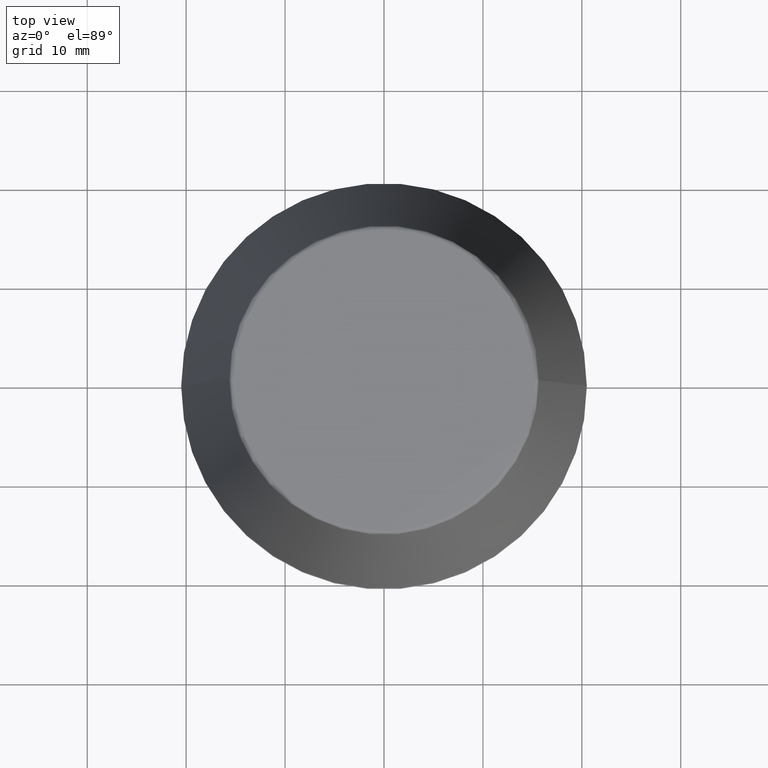
[diagram: clean part render]
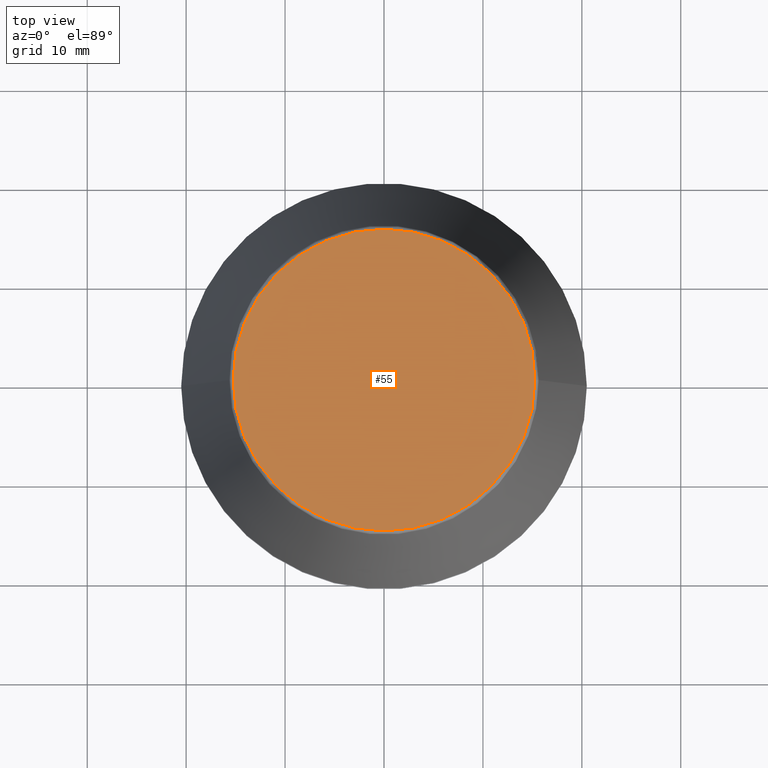
[diagram: same view with one face highlighted and labeled with its STEP entity id]
A machine part, top view. The second image highlights one B-rep face of the part: STEP entity #55.
In plain terms, the highlighted planar face has unit normal (0, 0, -1).
Its self-contained STEP definition (entity closure, byte-faithful):
#10 = AXIS2_PLACEMENT_3D ( 'NONE', #347, #335, #136 ) ;
#29 = EDGE_CURVE ( 'NONE', #213, #173, #31, .T. ) ;
#31 = CIRCLE ( 'NONE', #59, 15.24773554530077600 ) ;
#50 = PLANE ( 'NONE',  #350 ) ;
#55 = ADVANCED_FACE ( 'NONE', ( #362 ), #50, .F. ) ;
#59 = AXIS2_PLACEMENT_3D ( 'NONE', #304, #111, #338 ) ;
#76 = ORIENTED_EDGE ( 'NONE', *, *, #29, .T. ) ;
#96 = DIRECTION ( 'NONE',  ( 0.0000000000000000000, 0.0000000000000000000, -1.000000000000000000 ) ) ;
#111 = DIRECTION ( 'NONE',  ( -0.0000000000000000000, -0.0000000000000000000, 1.000000000000000000 ) ) ;
#136 = DIRECTION ( 'NONE',  ( 1.000000000000000000, 0.0000000000000000000, 0.0000000000000000000 ) ) ;
#173 = VERTEX_POINT ( 'NONE', #244 ) ;
#176 = EDGE_CURVE ( 'NONE', #173, #213, #209, .T. ) ;
#209 = CIRCLE ( 'NONE', #10, 15.24773554530077600 ) ;
#213 = VERTEX_POINT ( 'NONE', #339 ) ;
#244 = CARTESIAN_POINT ( 'NONE',  ( -15.24773554530077600, 1.891563625393435400E-015, 46.00000000000000000 ) ) ;
#286 = CARTESIAN_POINT ( 'NONE',  ( 0.0000000000000000000, 15.24773554530077600, 46.00000000000000000 ) ) ;
#292 = EDGE_LOOP ( 'NONE', ( #76, #353 ) ) ;
#304 = CARTESIAN_POINT ( 'NONE',  ( 0.0000000000000000000, 0.0000000000000000000, 46.00000000000000000 ) ) ;
#317 = DIRECTION ( 'NONE',  ( -1.000000000000000000, 0.0000000000000000000, -0.0000000000000000000 ) ) ;
#335 = DIRECTION ( 'NONE',  ( -0.0000000000000000000, -0.0000000000000000000, 1.000000000000000000 ) ) ;
#338 = DIRECTION ( 'NONE',  ( 1.000000000000000000, 0.0000000000000000000, 0.0000000000000000000 ) ) ;
#339 = CARTESIAN_POINT ( 'NONE',  ( 15.24773554530077600, 0.0000000000000000000, 46.00000000000000000 ) ) ;
#347 = CARTESIAN_POINT ( 'NONE',  ( 0.0000000000000000000, 0.0000000000000000000, 46.00000000000000000 ) ) ;
#350 = AXIS2_PLACEMENT_3D ( 'NONE', #286, #96, #317 ) ;
#353 = ORIENTED_EDGE ( 'NONE', *, *, #176, .T. ) ;
#362 = FACE_OUTER_BOUND ( 'NONE', #292, .T. ) ;